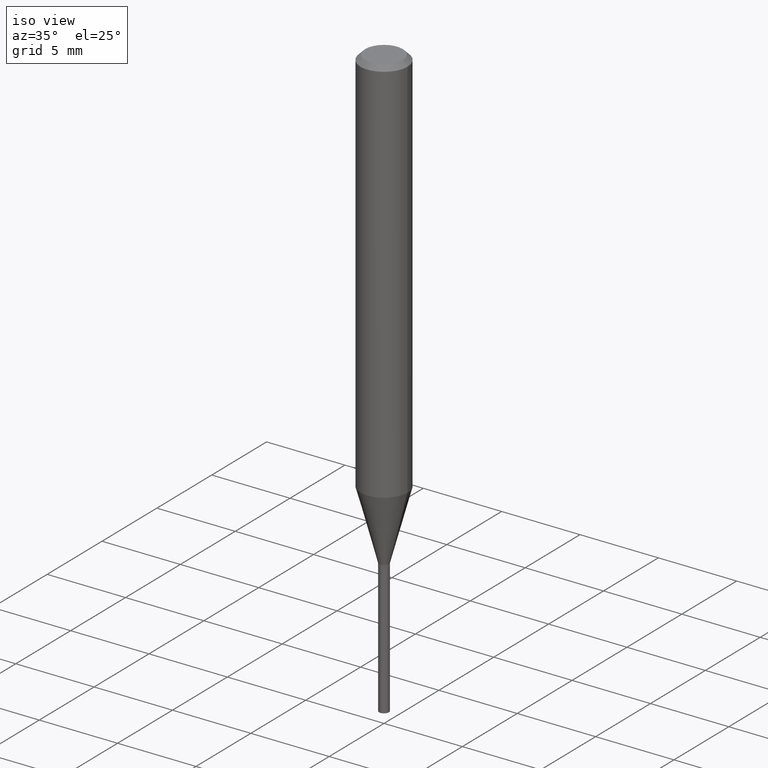
[diagram: clean part render]
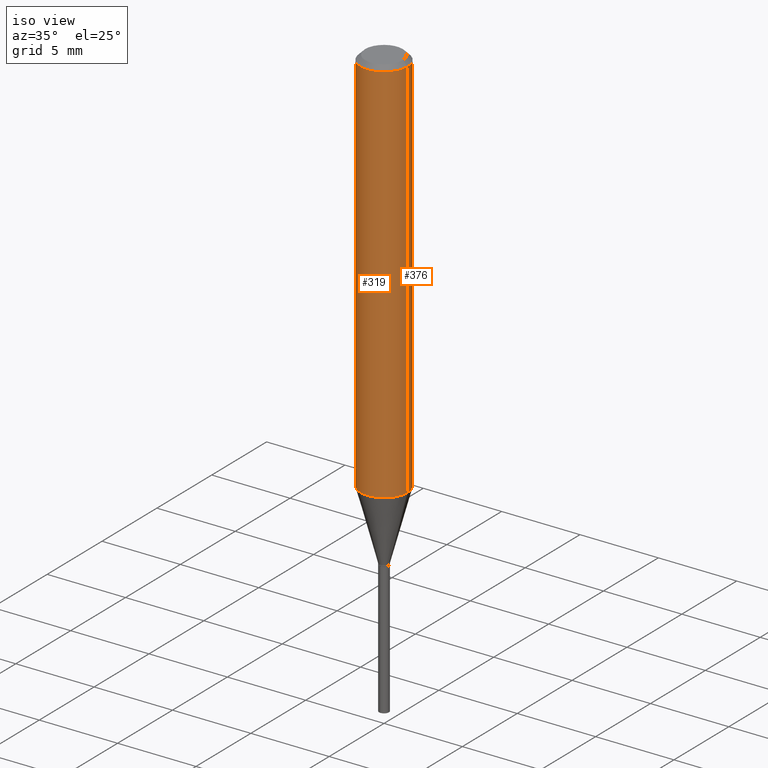
[diagram: same view with one multi-face feature highlighted, each face labeled with its STEP entity id]
A machine part, iso view. The highlighted faces form ONE feature: a constant-radius fillet chain: 2 tangent blend faces with common blend radius 1.4999 mm. The faces share edges in the B-rep.
Their STEP definitions:
[1] entity #376 (Cylinder):
#17 = ORIENTED_EDGE ( 'NONE', *, *, #357, .T. ) ;
#27 = ORIENTED_EDGE ( 'NONE', *, *, #152, .F. ) ;
#54 = LINE ( 'NONE', #204, #354 ) ;
#70 = ORIENTED_EDGE ( 'NONE', *, *, #75, .T. ) ;
#75 = EDGE_CURVE ( 'NONE', #375, #172, #419, .T. ) ;
#78 = DIRECTION ( 'NONE',  ( 1.000000000000000000, -6.982962677686266711E-15, 0.000000000000000000 ) ) ;
#108 = DIRECTION ( 'NONE',  ( -2.445468806185136877E-29, 3.491481338843145188E-15, 1.000000000000000000 ) ) ;
#115 = AXIS2_PLACEMENT_3D ( 'NONE', #463, #377, #428 ) ;
#140 = CYLINDRICAL_SURFACE ( 'NONE', #264, 0.05905000000000006771 ) ;
#142 = DIRECTION ( 'NONE',  ( 1.000000000000000000, -6.982962677686266711E-15, 4.876176775795936353E-29 ) ) ;
#152 = EDGE_CURVE ( 'NONE', #248, #414, #153, .T. ) ;
#153 = CIRCLE ( 'NONE', #168, 0.05904999999999999832 ) ;
#165 = CARTESIAN_POINT ( 'NONE',  ( 0.05904999999999999832, -4.535783407291118600E-16, -0.01181000000000007218 ) ) ;
#168 = AXIS2_PLACEMENT_3D ( 'NONE', #262, #418, #78 ) ;
#171 = CARTESIAN_POINT ( 'NONE',  ( -0.05904999999999999832, -1.310040510018738001E-15, -0.01181000000000007218 ) ) ;
#172 = VERTEX_POINT ( 'NONE', #360 ) ;
#187 = VECTOR ( 'NONE', #108, 39.37007874015748143 ) ;
#204 = CARTESIAN_POINT ( 'NONE',  ( -0.05905000000000006771, 4.195754854663396409E-16, -2.904631170795525045E-30 ) ) ;
#248 = VERTEX_POINT ( 'NONE', #165 ) ;
#262 = CARTESIAN_POINT ( 'NONE',  ( 2.888098660104664204E-31, -4.123439461173780263E-17, -0.01181000000000007218 ) ) ;
#264 = AXIS2_PLACEMENT_3D ( 'NONE', #485, #402, #142 ) ;
#332 = CARTESIAN_POINT ( 'NONE',  ( 0.05905000000000013016, -3.830341542475794546E-15, -0.9789534196653978393 ) ) ;
#334 = LINE ( 'NONE', #410, #187 ) ;
#354 = VECTOR ( 'NONE', #482, 39.37007874015748143 ) ;
#357 = EDGE_CURVE ( 'NONE', #172, #414, #54, .T. ) ;
#360 = CARTESIAN_POINT ( 'NONE',  ( -0.05905000000000013016, -2.998422110892078950E-15, -0.9789534196653978393 ) ) ;
#373 = EDGE_LOOP ( 'NONE', ( #70, #17, #27, #450 ) ) ;
#375 = VERTEX_POINT ( 'NONE', #332 ) ;
#376 = ADVANCED_FACE ( 'NONE', ( #413 ), #140, .T. ) ;
#377 = DIRECTION ( 'NONE',  ( -2.445468806185136597E-29, 3.491481338843145583E-15, 1.000000000000000000 ) ) ;
#402 = DIRECTION ( 'NONE',  ( -2.445468806185136597E-29, 3.491481338843145583E-15, 1.000000000000000000 ) ) ;
#410 = CARTESIAN_POINT ( 'NONE',  ( 0.05905000000000006771, -4.123439461173745257E-16, 2.879382386107503723E-30 ) ) ;
#413 = FACE_OUTER_BOUND ( 'NONE', #373, .T. ) ;
#414 = VERTEX_POINT ( 'NONE', #171 ) ;
#415 = EDGE_CURVE ( 'NONE', #375, #248, #334, .T. ) ;
#418 = DIRECTION ( 'NONE',  ( -2.445468806185136597E-29, 3.491481338843145583E-15, 1.000000000000000000 ) ) ;
#419 = CIRCLE ( 'NONE', #115, 0.05905000000000013016 ) ;
#428 = DIRECTION ( 'NONE',  ( 1.000000000000000000, -6.982962677686265133E-15, 0.000000000000000000 ) ) ;
#450 = ORIENTED_EDGE ( 'NONE', *, *, #415, .F. ) ;
#463 = CARTESIAN_POINT ( 'NONE',  ( 2.394000050499997452E-29, -3.417997596358418837E-15, -0.9789534196653978393 ) ) ;
#482 = DIRECTION ( 'NONE',  ( -2.445468806185136877E-29, 3.491481338843145188E-15, 1.000000000000000000 ) ) ;
#485 = CARTESIAN_POINT ( 'NONE',  ( 0.000000000000000000, 0.000000000000000000, 0.000000000000000000 ) ) ;
[2] entity #319 (Cylinder):
#39 = AXIS2_PLACEMENT_3D ( 'NONE', #131, #434, #400 ) ;
#50 = DIRECTION ( 'NONE',  ( 1.000000000000000000, -6.982962677686266711E-15, 4.876176775795936353E-29 ) ) ;
#54 = LINE ( 'NONE', #204, #354 ) ;
#60 = CIRCLE ( 'NONE', #39, 0.05905000000000013016 ) ;
#68 = ORIENTED_EDGE ( 'NONE', *, *, #295, .F. ) ;
#89 = FACE_OUTER_BOUND ( 'NONE', #383, .T. ) ;
#108 = DIRECTION ( 'NONE',  ( -2.445468806185136877E-29, 3.491481338843145188E-15, 1.000000000000000000 ) ) ;
#131 = CARTESIAN_POINT ( 'NONE',  ( 2.394000050499997452E-29, -3.417997596358418837E-15, -0.9789534196653978393 ) ) ;
#165 = CARTESIAN_POINT ( 'NONE',  ( 0.05904999999999999832, -4.535783407291118600E-16, -0.01181000000000007218 ) ) ;
#170 = DIRECTION ( 'NONE',  ( 1.000000000000000000, -6.982962677686266711E-15, 0.000000000000000000 ) ) ;
#171 = CARTESIAN_POINT ( 'NONE',  ( -0.05904999999999999832, -1.310040510018738001E-15, -0.01181000000000007218 ) ) ;
#172 = VERTEX_POINT ( 'NONE', #360 ) ;
#187 = VECTOR ( 'NONE', #108, 39.37007874015748143 ) ;
#204 = CARTESIAN_POINT ( 'NONE',  ( -0.05905000000000006771, 4.195754854663396409E-16, -2.904631170795525045E-30 ) ) ;
#209 = CIRCLE ( 'NONE', #420, 0.05904999999999999832 ) ;
#211 = ORIENTED_EDGE ( 'NONE', *, *, #212, .T. ) ;
#212 = EDGE_CURVE ( 'NONE', #172, #375, #60, .T. ) ;
#235 = CARTESIAN_POINT ( 'NONE',  ( 0.000000000000000000, 0.000000000000000000, 0.000000000000000000 ) ) ;
#248 = VERTEX_POINT ( 'NONE', #165 ) ;
#277 = CYLINDRICAL_SURFACE ( 'NONE', #316, 0.05905000000000006771 ) ;
#295 = EDGE_CURVE ( 'NONE', #414, #248, #209, .T. ) ;
#316 = AXIS2_PLACEMENT_3D ( 'NONE', #235, #470, #50 ) ;
#319 = ADVANCED_FACE ( 'NONE', ( #89 ), #277, .T. ) ;
#320 = CARTESIAN_POINT ( 'NONE',  ( 2.888098660104664204E-31, -4.123439461173780263E-17, -0.01181000000000007218 ) ) ;
#332 = CARTESIAN_POINT ( 'NONE',  ( 0.05905000000000013016, -3.830341542475794546E-15, -0.9789534196653978393 ) ) ;
#334 = LINE ( 'NONE', #410, #187 ) ;
#354 = VECTOR ( 'NONE', #482, 39.37007874015748143 ) ;
#357 = EDGE_CURVE ( 'NONE', #172, #414, #54, .T. ) ;
#359 = ORIENTED_EDGE ( 'NONE', *, *, #415, .T. ) ;
#360 = CARTESIAN_POINT ( 'NONE',  ( -0.05905000000000013016, -2.998422110892078950E-15, -0.9789534196653978393 ) ) ;
#375 = VERTEX_POINT ( 'NONE', #332 ) ;
#383 = EDGE_LOOP ( 'NONE', ( #411, #211, #359, #68 ) ) ;
#398 = DIRECTION ( 'NONE',  ( -2.445468806185136597E-29, 3.491481338843145583E-15, 1.000000000000000000 ) ) ;
#400 = DIRECTION ( 'NONE',  ( 1.000000000000000000, -6.982962677686265133E-15, 0.000000000000000000 ) ) ;
#410 = CARTESIAN_POINT ( 'NONE',  ( 0.05905000000000006771, -4.123439461173745257E-16, 2.879382386107503723E-30 ) ) ;
#411 = ORIENTED_EDGE ( 'NONE', *, *, #357, .F. ) ;
#414 = VERTEX_POINT ( 'NONE', #171 ) ;
#415 = EDGE_CURVE ( 'NONE', #375, #248, #334, .T. ) ;
#420 = AXIS2_PLACEMENT_3D ( 'NONE', #320, #398, #170 ) ;
#434 = DIRECTION ( 'NONE',  ( -2.445468806185136597E-29, 3.491481338843145583E-15, 1.000000000000000000 ) ) ;
#470 = DIRECTION ( 'NONE',  ( -2.445468806185136597E-29, 3.491481338843145583E-15, 1.000000000000000000 ) ) ;
#482 = DIRECTION ( 'NONE',  ( -2.445468806185136877E-29, 3.491481338843145188E-15, 1.000000000000000000 ) ) ;